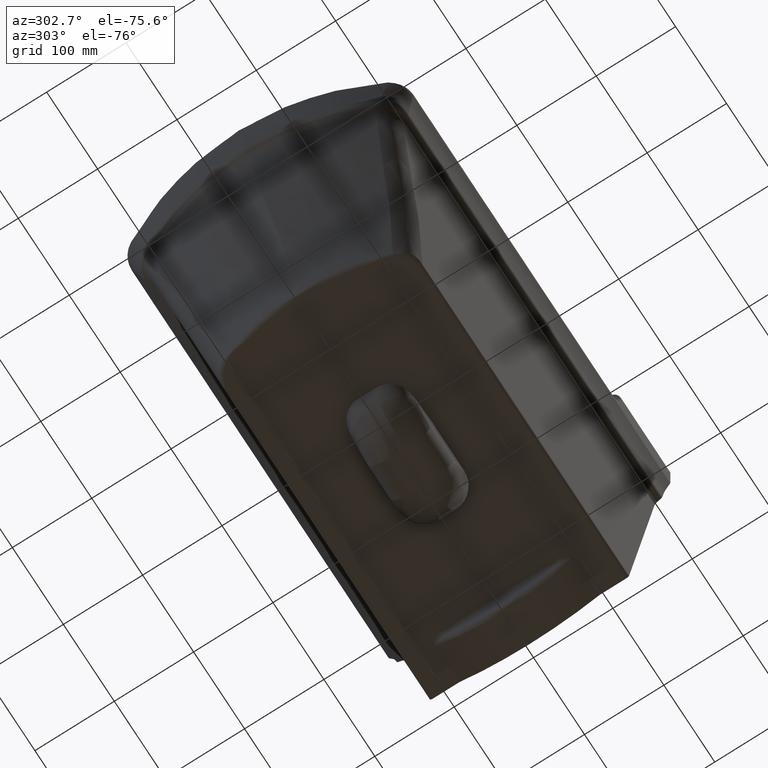
[diagram: clean part render]
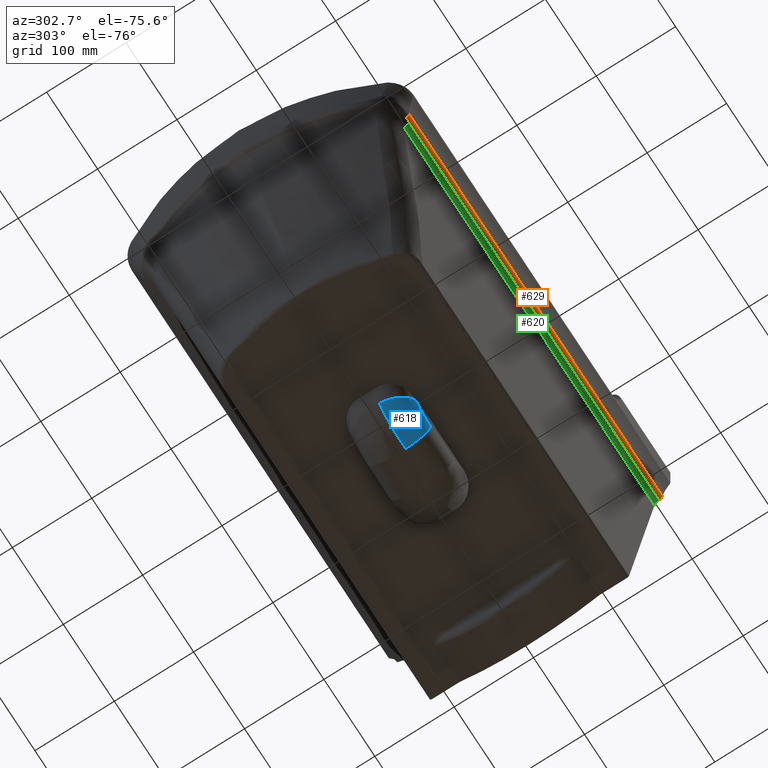
[diagram: same view with three faces highlighted in distinct colors, each labeled with its STEP entity id]
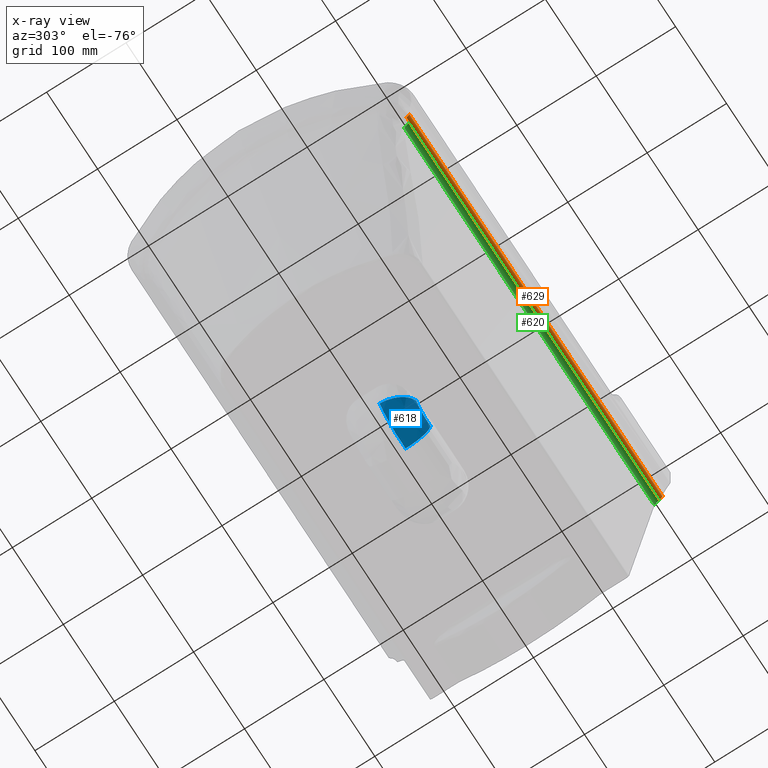
[diagram: x-ray of the same camera — body ghosted, the three highlighted faces saturated]
A machine part, auxiliary view with three faces highlighted in distinct colors.
The next image is the same camera in x-ray (body ghosted, the three faces saturated) — at least one of them is partly hidden behind the body in this view.
Their STEP definitions:

[orange] entity #629 — the highlighted cylindrical surface (edge-blend (fillet) strip) has radius 10 mm, axis along (1, 0, 0).
#220=CYLINDRICAL_SURFACE('',#3373,10.);
#231=CIRCLE('',#3247,10.);
#307=CIRCLE('',#3372,10.);
#377=LINE('',#12465,#434);
#378=LINE('',#12527,#435);
#434=VECTOR('',#3665,1.);
#435=VECTOR('',#3668,1.);
#629=ADVANCED_FACE('',(#884),#220,.T.);
#884=FACE_OUTER_BOUND('',#1093,.T.);
#1093=EDGE_LOOP('',(#2044,#2045,#2046,#2047));
#2044=ORIENTED_EDGE('',*,*,#2438,.T.);
#2045=ORIENTED_EDGE('',*,*,#2822,.T.);
#2046=ORIENTED_EDGE('',*,*,#2898,.F.);
#2047=ORIENTED_EDGE('',*,*,#2818,.T.);
#2140=VERTEX_POINT('',#3867);
#2141=VERTEX_POINT('',#3869);
#2376=VERTEX_POINT('',#12458);
#2379=VERTEX_POINT('',#12526);
#2438=EDGE_CURVE('',#2141,#2140,#231,.T.);
#2818=EDGE_CURVE('',#2376,#2141,#377,.T.);
#2822=EDGE_CURVE('',#2140,#2379,#378,.T.);
#2898=EDGE_CURVE('',#2376,#2379,#307,.T.);
#3247=AXIS2_PLACEMENT_3D('',#3868,#3418,#3419);
#3372=AXIS2_PLACEMENT_3D('',#16648,#3718,#3719);
#3373=AXIS2_PLACEMENT_3D('',#16661,#3720,#3721);
#3418=DIRECTION('',(-1.,0.,0.));
#3419=DIRECTION('',(0.,0.,1.));
#3665=DIRECTION('',(1.,0.,0.));
#3668=DIRECTION('',(-1.,0.,0.));
#3718=DIRECTION('',(-1.,-2.50703113274729E-13,-1.16773229448266E-13));
#3719=DIRECTION('',(2.4980018054066E-13,-1.,0.));
#3720=DIRECTION('',(1.,0.,0.));
#3721=DIRECTION('',(0.,0.,-1.));
#3867=CARTESIAN_POINT('',(92.1452470496094,-167.657223783842,-48.8914463315872));
#3868=CARTESIAN_POINT('',(92.1452470496093,-157.70495757871,-47.9155378408973));
#3869=CARTESIAN_POINT('',(92.1452470496093,-164.080539751142,-55.6195596452906));
#12458=CARTESIAN_POINT('',(-405.143430282848,-164.080539751143,-55.6195596452901));
#12465=CARTESIAN_POINT('',(-471.395055565571,-164.080539751142,-55.6195596452906));
#12526=CARTESIAN_POINT('',(-405.143430282832,-167.657223783842,-48.8914463315869));
#12527=CARTESIAN_POINT('',(92.1452470496094,-167.657223783842,-48.8914463315872));
#16648=CARTESIAN_POINT('',(-405.143430282835,-157.70495757871,-47.9155378408974));
#16661=CARTESIAN_POINT('',(-405.143430282832,-157.70495757871,-47.9155378408973));

[blue] entity #618 — the highlighted face is a freeform B-spline surface patch.
#150=(
BOUNDED_SURFACE()
B_SPLINE_SURFACE(3,2,((#16318,#16319,#16320),(#16321,#16322,#16323),(#16324,
#16325,#16326),(#16327,#16328,#16329),(#16330,#16331,#16332),(#16333,#16334,
#16335),(#16336,#16337,#16338),(#16339,#16340,#16341),(#16342,#16343,#16344),
(#16345,#16346,#16347),(#16348,#16349,#16350),(#16351,#16352,#16353),(#16354,
#16355,#16356),(#16357,#16358,#16359),(#16360,#16361,#16362),(#16363,#16364,
#16365),(#16366,#16367,#16368),(#16369,#16370,#16371),(#16372,#16373,#16374),
(#16375,#16376,#16377),(#16378,#16379,#16380),(#16381,#16382,#16383),(#16384,
#16385,#16386),(#16387,#16388,#16389),(#16390,#16391,#16392),(#16393,#16394,
#16395),(#16396,#16397,#16398),(#16399,#16400,#16401)),.UNSPECIFIED.,.F.,
 .F.,.F.)
B_SPLINE_SURFACE_WITH_KNOTS((4,2,2,2,2,2,2,2,2,2,2,2,2,4),(3,3),(0.,0.0625,
0.125,0.25,0.375,0.5,0.5625,0.625,0.65625,0.6875,0.75,0.8125,0.875,1.),
(0.,1.),.UNSPECIFIED.)
GEOMETRIC_REPRESENTATION_ITEM()
RATIONAL_B_SPLINE_SURFACE(((1.,0.744295693430058,1.),(1.,0.744449485806862,
1.),(1.,0.744687858353788,1.),(1.,0.745268434261522,1.),(1.,0.745539889945473,
1.),(1.,0.746307452625572,1.),(1.,0.746759206127374,1.),(1.,0.747532624955682,
1.),(1.,0.747845750503586,1.),(1.,0.748204100498287,1.),(1.,0.748267853696087,
1.),(1.,0.748205069195,1.),(1.,0.748158670799032,1.),(1.,0.748024987824743,
1.),(1.,0.747941354578728,1.),(1.,0.747750533137582,1.),(1.,0.747675708974279,
1.),(1.,0.747484846967771,1.),(1.,0.747359172921917,1.),(1.,0.746986369711599,
1.),(1.,0.74673766509529,1.),(1.,0.746292256085739,1.),(1.,0.746097749470068,
1.),(1.,0.745733551611289,1.),(1.,0.745564601950844,1.),(1.,0.745095567379143,
1.),(1.,0.744837570533436,1.),(1.,0.744602217841013,1.)))
REPRESENTATION_ITEM('')
SURFACE()
);
#618=ADVANCED_FACE('',(#873),#150,.T.);
#873=FACE_OUTER_BOUND('',#1082,.T.);
#1082=EDGE_LOOP('',(#2000,#2001,#2002,#2003));
#2000=ORIENTED_EDGE('',*,*,#2727,.F.);
#2001=ORIENTED_EDGE('',*,*,#2890,.T.);
#2002=ORIENTED_EDGE('',*,*,#2885,.F.);
#2003=ORIENTED_EDGE('',*,*,#2889,.F.);
#2319=VERTEX_POINT('',#10823);
#2320=VERTEX_POINT('',#10846);
#2408=VERTEX_POINT('',#15780);
#2409=VERTEX_POINT('',#15805);
#2727=EDGE_CURVE('',#2319,#2320,#3116,.T.);
#2885=EDGE_CURVE('',#2409,#2408,#3230,.T.);
#2889=EDGE_CURVE('',#2320,#2409,#3233,.T.);
#2890=EDGE_CURVE('',#2319,#2408,#3234,.T.);
#3116=B_SPLINE_CURVE_WITH_KNOTS('',3,(#10824,#10825,#10826,#10827,#10828,
#10829,#10830,#10831,#10832,#10833,#10834,#10835,#10836,#10837,#10838,#10839,
#10840,#10841,#10842,#10843,#10844,#10845),.UNSPECIFIED.,.F.,.F.,(4,2,2,
2,2,2,2,2,2,2,4),(0.,0.250000000000007,0.375000000000012,0.500000000000017,
0.625000000000022,0.750000000000028,0.781250000000028,0.796875000000028,
0.812500000000027,0.875000000000018,1.),.UNSPECIFIED.);
#3230=B_SPLINE_CURVE_WITH_KNOTS('',3,(#15806,#15807,#15808,#15809,#15810,
#15811,#15812,#15813,#15814,#15815),.UNSPECIFIED.,.F.,.F.,(4,2,2,2,4),(0.,
0.25,0.5,0.75,1.),.UNSPECIFIED.);
#3233=B_SPLINE_CURVE_WITH_KNOTS('',3,(#15983,#15984,#15985,#15986,#15987,
#15988),.UNSPECIFIED.,.F.,.F.,(4,2,4),(0.,0.5,1.),.UNSPECIFIED.);
#3234=B_SPLINE_CURVE_WITH_KNOTS('',3,(#15990,#15991,#15992,#15993,#15994,
#15995),.UNSPECIFIED.,.F.,.F.,(4,2,4),(0.,0.5,1.),.UNSPECIFIED.);
#10823=CARTESIAN_POINT('',(-192.395256691808,-39.8315281354116,-304.716000980951));
#10824=CARTESIAN_POINT('',(-192.395255745867,-39.8315282736393,-304.716000126721));
#10825=CARTESIAN_POINT('',(-190.413629752935,-39.6594518273554,-306.882531008153));
#10826=CARTESIAN_POINT('',(-188.383659294012,-39.5272267607827,-308.753005812514));
#10827=CARTESIAN_POINT('',(-185.230828049831,-39.3890792910963,-311.114656843847));
#10828=CARTESIAN_POINT('',(-184.070359254435,-39.3496005423713,-311.891944764856));
#10829=CARTESIAN_POINT('',(-181.69701030273,-39.2914321098316,-313.298748642446));
#10830=CARTESIAN_POINT('',(-180.46084651715,-39.2716753635583,-313.946052353813));
#10831=CARTESIAN_POINT('',(-177.885037338946,-39.2508674347648,-315.128470129423));
#10832=CARTESIAN_POINT('',(-176.484871724268,-39.2493759162278,-315.691788111783));
#10833=CARTESIAN_POINT('',(-173.96930962189,-39.2658777856985,-316.542040449122));
#10834=CARTESIAN_POINT('',(-172.85384546044,-39.2832535767739,-316.832841922528));
#10835=CARTESIAN_POINT('',(-171.062199674115,-39.327264248886,-317.15789694217));
#10836=CARTESIAN_POINT('',(-170.690559055039,-39.3370487440987,-317.219584392385));
#10837=CARTESIAN_POINT('',(-170.113074263533,-39.3531995890303,-317.30713041216));
#10838=CARTESIAN_POINT('',(-169.892232576219,-39.3595851106049,-317.338773909849));
#10839=CARTESIAN_POINT('',(-169.637959395207,-39.3670529055746,-317.374192998672));
#10840=CARTESIAN_POINT('',(-169.507952465622,-39.3709279448808,-317.391804217273));
#10841=CARTESIAN_POINT('',(-168.843585273655,-39.3910086165626,-317.479368608793));
#10842=CARTESIAN_POINT('',(-168.266229304827,-39.4093306565983,-317.547846672331));
#10843=CARTESIAN_POINT('',(-166.397263948145,-39.4710607282023,-317.748557849701));
#10844=CARTESIAN_POINT('',(-164.968781758787,-39.5212324848715,-317.8760678841));
#10845=CARTESIAN_POINT('',(-163.359336354821,-39.5804025243847,-317.997274171338));
#10846=CARTESIAN_POINT('',(-163.359339503788,-39.5796208893128,-317.997697560821));
#15780=CARTESIAN_POINT('',(-214.689133433034,-8.07397302163802,-322.63427601997));
#15805=CARTESIAN_POINT('',(-163.359364095668,-7.83434825568258,-346.589952218667));
#15806=CARTESIAN_POINT('',(-163.359364095668,-7.83434838693945,-346.59000910048));
#15807=CARTESIAN_POINT('',(-168.236537938349,-7.67703368744166,-346.197361303477));
#15808=CARTESIAN_POINT('',(-173.139738818881,-7.56527614034088,-345.701859961355));
#15809=CARTESIAN_POINT('',(-182.576461228412,-7.47662793173544,-343.609678342302));
#15810=CARTESIAN_POINT('',(-187.092181981017,-7.47062462885895,-341.941957550793));
#15811=CARTESIAN_POINT('',(-195.867047085613,-7.51760824234932,-337.819298092923));
#15812=CARTESIAN_POINT('',(-200.095612284927,-7.5721196966868,-335.292097771255));
#15813=CARTESIAN_POINT('',(-207.833244653638,-7.75545819259093,-329.515985910779));
#15814=CARTESIAN_POINT('',(-211.38891708087,-7.86477581871533,-326.2341881454));
#15815=CARTESIAN_POINT('',(-214.689133416676,-8.07397358641546,-322.634276037793));
#15983=CARTESIAN_POINT('',(-163.359364095668,-39.578555998326,-317.99758351468));
#15984=CARTESIAN_POINT('',(-163.359364095668,-38.748350945304,-325.74951506059));
#15985=CARTESIAN_POINT('',(-163.359364095668,-34.9695687520681,-333.149308155464));
#15986=CARTESIAN_POINT('',(-163.359364095668,-23.3838272857941,-343.584696368984));
#15987=CARTESIAN_POINT('',(-163.359364095668,-15.6305882103401,-346.571905191566));
#15988=CARTESIAN_POINT('',(-163.359364095668,-7.83434812442547,-346.589895336854));
#15990=CARTESIAN_POINT('',(-192.395039471198,-39.8315093363769,-304.716237926035));
#15991=CARTESIAN_POINT('',(-198.144134888633,-38.9900051186644,-309.919986105819));
#15992=CARTESIAN_POINT('',(-203.746328960763,-35.2026291680996,-314.755338772354));
#15993=CARTESIAN_POINT('',(-211.883653361512,-23.6110031972857,-321.29560247445));
#15994=CARTESIAN_POINT('',(-214.380982386811,-15.8606011678154,-322.97013122711));
#15995=CARTESIAN_POINT('',(-214.688850300641,-8.07395564032396,-322.634584862748));
#16318=CARTESIAN_POINT('',(-214.880670601765,-8.08629036308003,-322.424842562335));
#16319=CARTESIAN_POINT('',(-213.744210391897,-36.7501213668633,-323.669235858226));
#16320=CARTESIAN_POINT('',(-192.534282555091,-39.8436498787545,-304.56362655623));
#16321=CARTESIAN_POINT('',(-214.223426245373,-8.04342151820446,-323.145193219303));
#16322=CARTESIAN_POINT('',(-213.097594636268,-36.695189418766,-324.358705410461));
#16323=CARTESIAN_POINT('',(-192.046264487204,-39.8009313260682,-305.099778390993));
#16324=CARTESIAN_POINT('',(-213.461592918321,-8.00067831617367,-323.964604502278));
#16325=CARTESIAN_POINT('',(-212.351891403624,-36.6348858249982,-325.132147180491));
#16326=CARTESIAN_POINT('',(-191.55279491973,-39.7594125509323,-305.629265577474));
#16327=CARTESIAN_POINT('',(-211.717587022589,-7.92055821938728,-325.743113295073));
#16328=CARTESIAN_POINT('',(-210.65397945394,-36.5108113272732,-326.793306443589));
#16329=CARTESIAN_POINT('',(-190.543236280124,-39.6810324359538,-306.659789225556));
#16330=CARTESIAN_POINT('',(-210.820085940493,-7.8824558572891,-326.615210757442));
#16331=CARTESIAN_POINT('',(-209.782753022188,-36.4522681218541,-327.607362316117));
#16332=CARTESIAN_POINT('',(-190.02722531561,-39.6441463488656,-307.161010574515));
#16333=CARTESIAN_POINT('',(-208.047168334007,-7.77558241451475,-329.177185094012));
#16334=CARTESIAN_POINT('',(-207.098946784617,-36.2878500187874,-329.995991242331));
#16335=CARTESIAN_POINT('',(-188.444723846254,-39.5405585035791,-308.621610559646));
#16336=CARTESIAN_POINT('',(-206.092252378137,-7.71442746902622,-330.812907766184));
#16337=CARTESIAN_POINT('',(-205.214847574504,-36.192991055221,-331.519200500361));
#16338=CARTESIAN_POINT('',(-187.343940187783,-39.4808984003171,-309.538138755504));
#16339=CARTESIAN_POINT('',(-201.932665110928,-7.61543156005744,-333.923404968886));
#16340=CARTESIAN_POINT('',(-201.224080467027,-36.0365414382045,-334.411868097911));
#16341=CARTESIAN_POINT('',(-185.043806121561,-39.3816772282212,-311.248265325554));
#16342=CARTESIAN_POINT('',(-199.718995133564,-7.57717538631101,-335.398474695791));
#16343=CARTESIAN_POINT('',(-199.10918500122,-35.9751802040552,-335.782774333495));
#16344=CARTESIAN_POINT('',(-183.843663720414,-39.3422626729094,-312.040887864895));
#16345=CARTESIAN_POINT('',(-195.177587990843,-7.5184388690407,-338.070019110002));
#16346=CARTESIAN_POINT('',(-194.78096553331,-35.8911842126515,-338.277715440005));
#16347=CARTESIAN_POINT('',(-181.339314249827,-39.284431821534,-313.4966239916));
#16348=CARTESIAN_POINT('',(-192.828812746673,-7.49951147889398,-339.276559819913));
#16349=CARTESIAN_POINT('',(-192.547020676003,-35.8685159594212,-339.409932059287));
#16350=CARTESIAN_POINT('',(-180.038623040044,-39.2663062150723,-314.155935623405));
#16351=CARTESIAN_POINT('',(-189.407224046265,-7.48464291170409,-340.827827099949));
#16352=CARTESIAN_POINT('',(-189.289725122421,-35.8602826206832,-340.876866279954));
#16353=CARTESIAN_POINT('',(-178.065095170277,-39.2538798341332,-315.033059371935));
#16354=CARTESIAN_POINT('',(-188.2803681589,-7.48175715040526,-341.305431335984));
#16355=CARTESIAN_POINT('',(-188.216159925484,-35.8615906849351,-341.33068214144));
#16356=CARTESIAN_POINT('',(-177.401543455931,-39.2521212994079,-315.308205690173));
#16357=CARTESIAN_POINT('',(-185.996684070962,-7.48006529119166,-342.211674617133));
#16358=CARTESIAN_POINT('',(-186.04185039031,-35.871459943312,-342.194294289727));
#16359=CARTESIAN_POINT('',(-176.063716791741,-39.2530474182129,-315.826193141871));
#16360=CARTESIAN_POINT('',(-184.752987387407,-7.48139517668481,-342.676472174223));
#16361=CARTESIAN_POINT('',(-184.863263166667,-35.8798669840086,-342.636147510174));
#16362=CARTESIAN_POINT('',(-175.38945396143,-39.255729920437,-316.069067507781));
#16363=CARTESIAN_POINT('',(-182.622631449873,-7.48917825529309,-343.379711814416));
#16364=CARTESIAN_POINT('',(-182.858310823357,-35.9031659916038,-343.305767566675));
#16365=CARTESIAN_POINT('',(-174.365731669679,-39.2646376209958,-316.39646573169));
#16366=CARTESIAN_POINT('',(-181.867639899656,-7.49274926125224,-343.615041092167));
#16367=CARTESIAN_POINT('',(-182.149664652167,-35.9127520892451,-343.530102207157));
#16368=CARTESIAN_POINT('',(-174.022416863934,-39.2684277306594,-316.499389032691));
#16369=CARTESIAN_POINT('',(-180.232594150278,-7.50227231104564,-344.08168519953));
#16370=CARTESIAN_POINT('',(-180.620288032538,-35.9374195933387,-343.977027032767));
#16371=CARTESIAN_POINT('',(-173.330528220219,-39.2780497217175,-316.689529716874));
#16372=CARTESIAN_POINT('',(-179.311868876434,-7.50835260638985,-344.319880387456));
#16373=CARTESIAN_POINT('',(-179.763197299303,-35.9533608838969,-344.206537771423));
#16374=CARTESIAN_POINT('',(-172.981739536206,-39.2839616062347,-316.776108472603));
#16375=CARTESIAN_POINT('',(-176.881860433641,-7.52891503835193,-344.887846525493));
#16376=CARTESIAN_POINT('',(-177.486409110887,-36.0033184018791,-344.761264651641));
#16377=CARTESIAN_POINT('',(-171.927107176637,-39.3048715248996,-317.01119332484));
#16378=CARTESIAN_POINT('',(-175.52869634853,-7.54570770014008,-345.136025752571));
#16379=CARTESIAN_POINT('',(-176.20505856479,-36.0398400078644,-345.011347212417));
#16380=CARTESIAN_POINT('',(-171.214085753145,-39.3226351147447,-317.138287402595));
#16381=CARTESIAN_POINT('',(-173.084695570377,-7.58318940374902,-345.540663258038));
#16382=CARTESIAN_POINT('',(-173.873715944131,-36.112901926116,-345.421790902475));
#16383=CARTESIAN_POINT('',(-169.777254831941,-39.3623319093868,-317.360295139225));
#16384=CARTESIAN_POINT('',(-172.013758755607,-7.60392272739626,-345.690726120581));
#16385=CARTESIAN_POINT('',(-172.841827127945,-36.1493111791517,-345.576140666093));
#16386=CARTESIAN_POINT('',(-169.053399770377,-39.384283693478,-317.455071467801));
#16387=CARTESIAN_POINT('',(-169.953517760992,-7.64833067142091,-345.955338199652));
#16388=CARTESIAN_POINT('',(-170.849433535729,-36.2231661905964,-345.848969272982));
#16389=CARTESIAN_POINT('',(-167.599319651572,-39.4306692605968,-317.625611531111));
#16390=CARTESIAN_POINT('',(-168.976716328832,-7.67191223018472,-346.066144199682));
#16391=CARTESIAN_POINT('',(-169.900448168617,-36.2604678710218,-345.96392964491));
#16392=CARTESIAN_POINT('',(-166.871197319602,-39.455104469989,-317.700505846587));
#16393=CARTESIAN_POINT('',(-166.172637648252,-7.7452500431677,-346.358767651773));
#16394=CARTESIAN_POINT('',(-167.165017378736,-36.3721206706214,-346.267828126236));
#16395=CARTESIAN_POINT('',(-164.685373124745,-39.5309096065184,-317.904101759717));
#16396=CARTESIAN_POINT('',(-164.482649452844,-7.79743971947389,-346.501938123571));
#16397=CARTESIAN_POINT('',(-165.501552684769,-36.44563148518,-346.416283616678));
#16398=CARTESIAN_POINT('',(-163.225880403105,-39.584665658333,-318.012856227111));
#16399=CARTESIAN_POINT('',(-162.852863803703,-7.85081062055592,-346.630344710121));
#16400=CARTESIAN_POINT('',(-163.892199357098,-36.5186809710637,-346.548544504582));
#16401=CARTESIAN_POINT('',(-161.765563140194,-39.6396920698534,-318.111413703078));

[green] entity #620 — the highlighted cylindrical surface (edge-blend (fillet) strip) has radius 15 mm, axis along (-1, 0, 0).
#219=CYLINDRICAL_SURFACE('',#3365,15.);
#232=CIRCLE('',#3248,15.);
#300=CIRCLE('',#3364,15.);
#371=LINE('',#12272,#428);
#376=LINE('',#12464,#433);
#428=VECTOR('',#3653,1.);
#433=VECTOR('',#3664,1.);
#620=ADVANCED_FACE('',(#875),#219,.F.);
#875=FACE_OUTER_BOUND('',#1084,.T.);
#1084=EDGE_LOOP('',(#2008,#2009,#2010,#2011));
#2008=ORIENTED_EDGE('',*,*,#2440,.T.);
#2009=ORIENTED_EDGE('',*,*,#2817,.T.);
#2010=ORIENTED_EDGE('',*,*,#2891,.T.);
#2011=ORIENTED_EDGE('',*,*,#2803,.T.);
#2142=VERTEX_POINT('',#3871);
#2143=VERTEX_POINT('',#3873);
#2354=VERTEX_POINT('',#11944);
#2377=VERTEX_POINT('',#12463);
#2440=EDGE_CURVE('',#2143,#2142,#232,.T.);
#2803=EDGE_CURVE('',#2354,#2143,#371,.T.);
#2817=EDGE_CURVE('',#2142,#2377,#376,.T.);
#2891=EDGE_CURVE('',#2377,#2354,#300,.T.);
#3248=AXIS2_PLACEMENT_3D('',#3872,#3421,#3422);
#3364=AXIS2_PLACEMENT_3D('',#16466,#3702,#3703);
#3365=AXIS2_PLACEMENT_3D('',#16467,#3704,#3705);
#3421=DIRECTION('',(1.,0.,0.));
#3422=DIRECTION('',(0.,0.,1.));
#3653=DIRECTION('',(1.,0.,0.));
#3664=DIRECTION('',(-1.,0.,0.));
#3702=DIRECTION('',(-1.,0.,0.));
#3703=DIRECTION('',(0.,0.,-1.));
#3704=DIRECTION('',(-1.,0.,0.));
#3705=DIRECTION('',(0.,0.,1.));
#3871=CARTESIAN_POINT('',(92.1452470496093,-162.732253613854,-56.7353546519108));
#3872=CARTESIAN_POINT('',(92.1452470496093,-172.295626872502,-68.2913873585007));
#3873=CARTESIAN_POINT('',(92.1452470496093,-157.435085165538,-66.2507256580761));
#11944=CARTESIAN_POINT('',(-398.778752804997,-157.435085165537,-66.2507256580759));
#12272=CARTESIAN_POINT('',(92.1452470496091,-157.435085165538,-66.2507256580761));
#12463=CARTESIAN_POINT('',(-398.778752804997,-162.732253613854,-56.7353546519105));
#12464=CARTESIAN_POINT('',(-400.385258596517,-162.732253613854,-56.7353546519108));
#16466=CARTESIAN_POINT('',(-398.778752804997,-172.295626872502,-68.2913873585007));
#16467=CARTESIAN_POINT('',(-471.395055565571,-172.295626872502,-68.2913873585007));